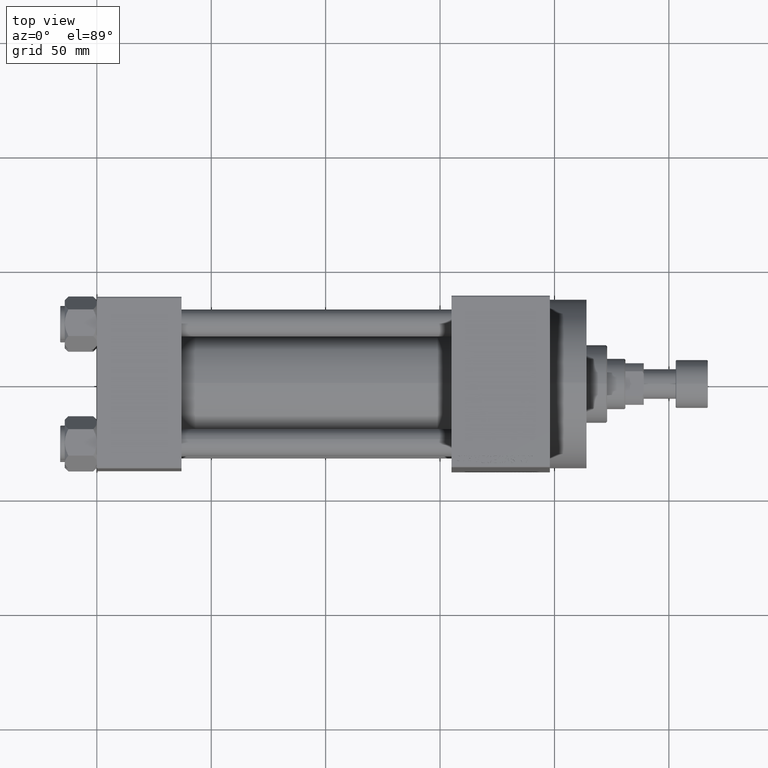
[diagram: clean part render]
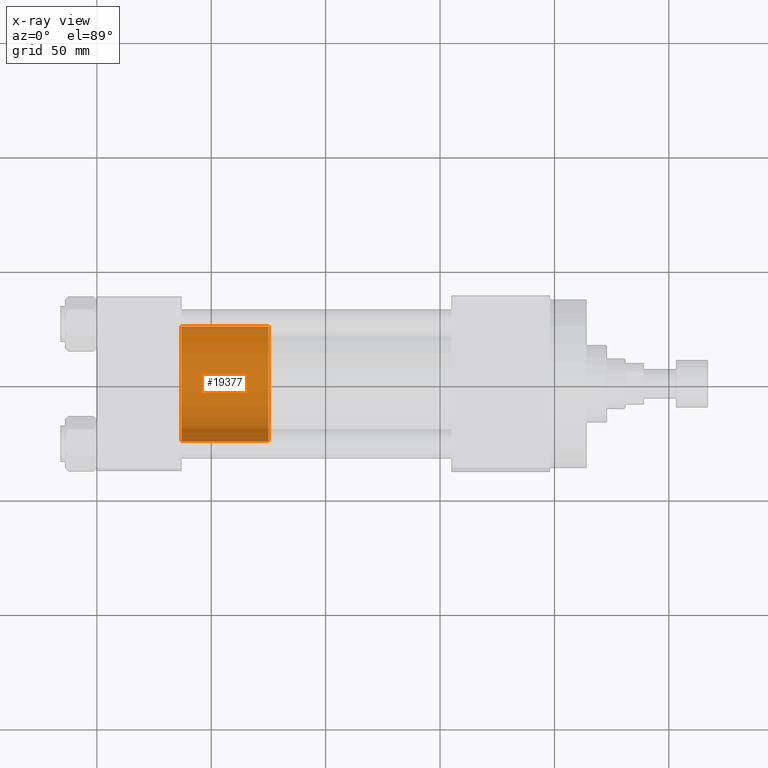
[diagram: x-ray — body ghosted, one internal face saturated and labeled with its STEP entity id]
A machine part, top view, then the same camera in x-ray: the body is ghosted and one INTERNAL B-rep face — a face not visible from any outside direction — is saturated and labeled: STEP entity #19377.
In plain terms, the highlighted cylindrical surface (partial cylindrical patch) has radius 25 mm, axis along (-1, 0, 0).
Its self-contained STEP definition (entity closure, byte-faithful):
#1018 = CARTESIAN_POINT ( 'NONE',  ( 25.00000000000000000, 3.061616997868383043E-15, 0.000000000000000000 ) ) ;
#1493 = LINE ( 'NONE', #4901, #40616 ) ;
#4901 = CARTESIAN_POINT ( 'NONE',  ( 25.00000000000000000, 3.061616997868383043E-15, 38.00000000000000000 ) ) ;
#5232 = CARTESIAN_POINT ( 'NONE',  ( -25.00000000000000000, 0.000000000000000000, 0.000000000000000000 ) ) ;
#5568 = EDGE_CURVE ( 'NONE', #25285, #8491, #24626, .T. ) ;
#5812 = CARTESIAN_POINT ( 'NONE',  ( 0.000000000000000000, 0.000000000000000000, 0.000000000000000000 ) ) ;
#6983 = FACE_OUTER_BOUND ( 'NONE', #36856, .T. ) ;
#8491 = VERTEX_POINT ( 'NONE', #5232 ) ;
#9158 = AXIS2_PLACEMENT_3D ( 'NONE', #32753, #33875, #14128 ) ;
#11446 = CIRCLE ( 'NONE', #9158, 25.00000000000000000 ) ;
#11745 = VERTEX_POINT ( 'NONE', #44228 ) ;
#13275 = DIRECTION ( 'NONE',  ( 1.000000000000000000, 0.000000000000000000, 0.000000000000000000 ) ) ;
#14128 = DIRECTION ( 'NONE',  ( 1.000000000000000000, 0.000000000000000000, 0.000000000000000000 ) ) ;
#14226 = EDGE_CURVE ( 'NONE', #11745, #24981, #1493, .T. ) ;
#14446 = DIRECTION ( 'NONE',  ( -0.000000000000000000, -0.000000000000000000, -1.000000000000000000 ) ) ;
#17508 = AXIS2_PLACEMENT_3D ( 'NONE', #36453, #14446, #21478 ) ;
#18371 = CIRCLE ( 'NONE', #22196, 25.00000000000000000 ) ;
#19377 = ADVANCED_FACE ( 'NONE', ( #6983 ), #40085, .T. ) ;
#20552 = DIRECTION ( 'NONE',  ( 0.000000000000000000, 0.000000000000000000, 1.000000000000000000 ) ) ;
#21286 = EDGE_CURVE ( 'NONE', #24981, #8491, #18371, .T. ) ;
#21478 = DIRECTION ( 'NONE',  ( -1.000000000000000000, 0.000000000000000000, 0.000000000000000000 ) ) ;
#22196 = AXIS2_PLACEMENT_3D ( 'NONE', #5812, #20552, #13275 ) ;
#22596 = VECTOR ( 'NONE', #43008, 1000.000000000000000 ) ;
#24626 = LINE ( 'NONE', #38899, #22596 ) ;
#24981 = VERTEX_POINT ( 'NONE', #1018 ) ;
#25285 = VERTEX_POINT ( 'NONE', #36443 ) ;
#29301 = EDGE_CURVE ( 'NONE', #11745, #25285, #11446, .T. ) ;
#32326 = ORIENTED_EDGE ( 'NONE', *, *, #14226, .T. ) ;
#32753 = CARTESIAN_POINT ( 'NONE',  ( 0.000000000000000000, 0.000000000000000000, 38.00000000000000000 ) ) ;
#33875 = DIRECTION ( 'NONE',  ( 0.000000000000000000, 0.000000000000000000, 1.000000000000000000 ) ) ;
#36443 = CARTESIAN_POINT ( 'NONE',  ( -25.00000000000000000, 0.000000000000000000, 38.00000000000000000 ) ) ;
#36453 = CARTESIAN_POINT ( 'NONE',  ( 0.000000000000000000, 0.000000000000000000, 38.00000000000000000 ) ) ;
#36856 = EDGE_LOOP ( 'NONE', ( #44636, #32326, #47084, #44149 ) ) ;
#38899 = CARTESIAN_POINT ( 'NONE',  ( -25.00000000000000000, 0.000000000000000000, 38.00000000000000000 ) ) ;
#40085 = CYLINDRICAL_SURFACE ( 'NONE', #17508, 25.00000000000000000 ) ;
#40616 = VECTOR ( 'NONE', #45739, 1000.000000000000000 ) ;
#43008 = DIRECTION ( 'NONE',  ( -0.000000000000000000, -0.000000000000000000, -1.000000000000000000 ) ) ;
#44149 = ORIENTED_EDGE ( 'NONE', *, *, #5568, .F. ) ;
#44228 = CARTESIAN_POINT ( 'NONE',  ( 25.00000000000000000, 3.061616997868383043E-15, 38.00000000000000000 ) ) ;
#44636 = ORIENTED_EDGE ( 'NONE', *, *, #29301, .F. ) ;
#45739 = DIRECTION ( 'NONE',  ( -0.000000000000000000, -0.000000000000000000, -1.000000000000000000 ) ) ;
#47084 = ORIENTED_EDGE ( 'NONE', *, *, #21286, .T. ) ;